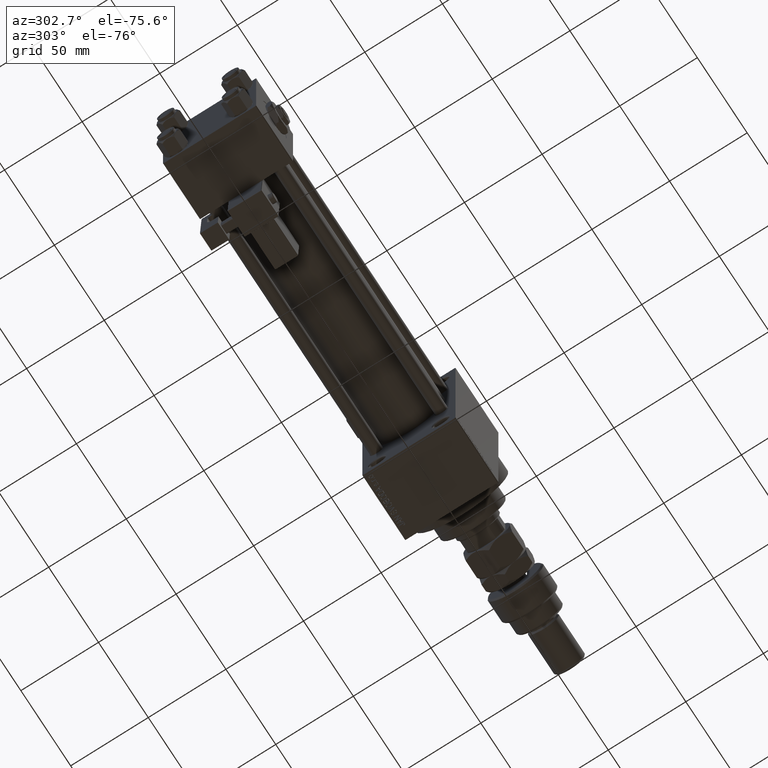
[diagram: clean part render]
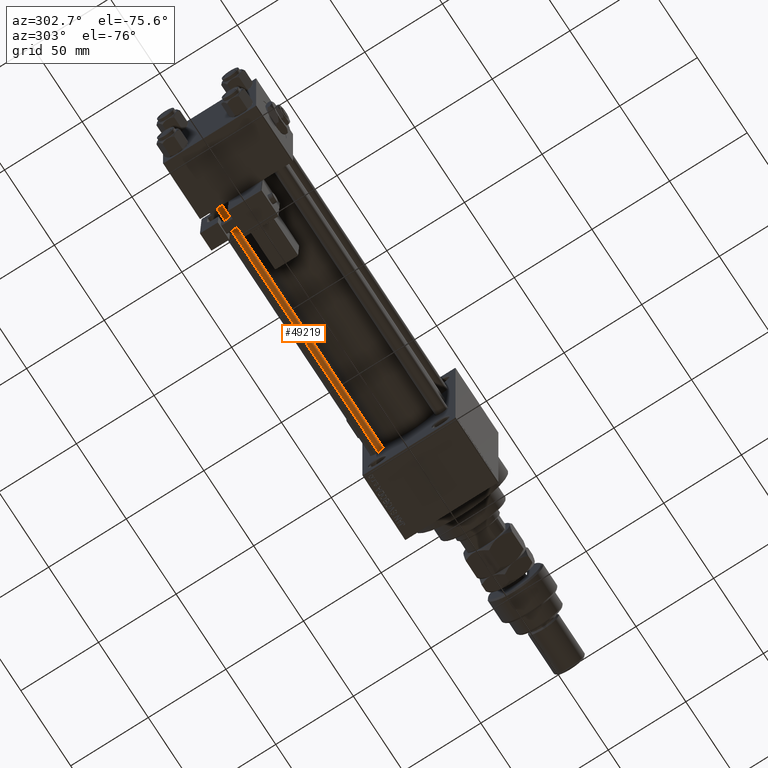
[diagram: same view with one face highlighted and labeled with its STEP entity id]
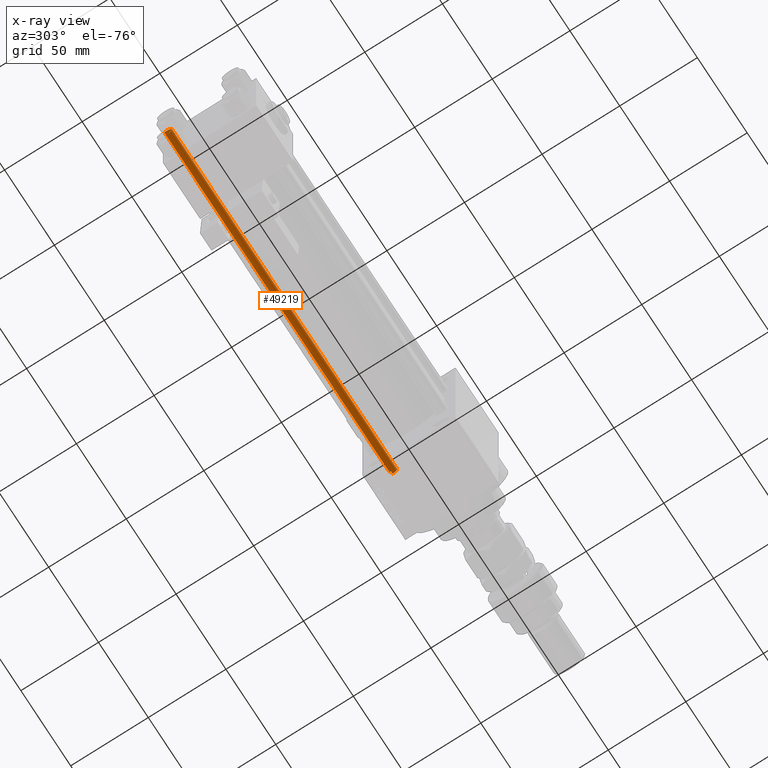
[diagram: x-ray of the same camera — body ghosted, the highlighted face saturated]
A machine part, auxiliary view. The second image highlights one B-rep face of the part: STEP entity #49219.
The next image is the same camera in x-ray: the body ghosted, the highlighted face saturated — about 0% of this face is hidden behind the body in this view.
In plain terms, the highlighted cylindrical surface (edge-blend (fillet) strip) has radius 4 mm, axis along (1, -0, 0).
Its self-contained STEP definition (entity closure, byte-faithful):
#99 = LINE ( 'NONE', #37821, #11263 ) ;
#1567 = CARTESIAN_POINT ( 'NONE',  ( 4.000000000000000000, 4.898587196589411843E-16, 226.5000000000001421 ) ) ;
#1612 = DIRECTION ( 'NONE',  ( -0.000000000000000000, -0.000000000000000000, 1.000000000000000000 ) ) ;
#1792 = VERTEX_POINT ( 'NONE', #1567 ) ;
#2435 = CARTESIAN_POINT ( 'NONE',  ( 0.000000000000000000, 0.000000000000000000, 226.5000000000001421 ) ) ;
#7819 = CARTESIAN_POINT ( 'NONE',  ( -4.000000000000000000, 0.000000000000000000, 0.5000000000002224887 ) ) ;
#8431 = EDGE_CURVE ( 'NONE', #1792, #43873, #36110, .T. ) ;
#9827 = ORIENTED_EDGE ( 'NONE', *, *, #47148, .T. ) ;
#11263 = VECTOR ( 'NONE', #53664, 1000.000000000000000 ) ;
#12235 = CARTESIAN_POINT ( 'NONE',  ( 0.000000000000000000, 0.000000000000000000, 227.0000000000000000 ) ) ;
#13916 = CARTESIAN_POINT ( 'NONE',  ( 4.000000000000000000, 4.898587196589411843E-16, 0.5000000000002224887 ) ) ;
#14193 = CARTESIAN_POINT ( 'NONE',  ( 0.000000000000000000, 0.000000000000000000, 0.5000000000002224887 ) ) ;
#15277 = DIRECTION ( 'NONE',  ( 1.000000000000000000, 0.000000000000000000, 0.000000000000000000 ) ) ;
#15329 = CARTESIAN_POINT ( 'NONE',  ( 4.000000000000000000, 4.898587196589411843E-16, 227.0000000000000000 ) ) ;
#15676 = EDGE_LOOP ( 'NONE', ( #27337, #17194, #9827, #53007 ) ) ;
#16608 = FACE_OUTER_BOUND ( 'NONE', #15676, .T. ) ;
#16668 = AXIS2_PLACEMENT_3D ( 'NONE', #2435, #32245, #15277 ) ;
#17194 = ORIENTED_EDGE ( 'NONE', *, *, #52738, .T. ) ;
#24563 = CYLINDRICAL_SURFACE ( 'NONE', #37452, 4.000000000000000000 ) ;
#24565 = CIRCLE ( 'NONE', #16668, 4.000000000000000000 ) ;
#27337 = ORIENTED_EDGE ( 'NONE', *, *, #8431, .F. ) ;
#28367 = VERTEX_POINT ( 'NONE', #7819 ) ;
#28722 = AXIS2_PLACEMENT_3D ( 'NONE', #14193, #1612, #51903 ) ;
#32245 = DIRECTION ( 'NONE',  ( 0.000000000000000000, 0.000000000000000000, -1.000000000000000000 ) ) ;
#33314 = CARTESIAN_POINT ( 'NONE',  ( -4.000000000000000000, 0.000000000000000000, 226.5000000000001421 ) ) ;
#36110 = LINE ( 'NONE', #15329, #36580 ) ;
#36580 = VECTOR ( 'NONE', #48682, 1000.000000000000000 ) ;
#37452 = AXIS2_PLACEMENT_3D ( 'NONE', #12235, #41226, #49940 ) ;
#37821 = CARTESIAN_POINT ( 'NONE',  ( -4.000000000000000000, 0.000000000000000000, 227.0000000000000000 ) ) ;
#39181 = CIRCLE ( 'NONE', #28722, 4.000000000000000000 ) ;
#40229 = VERTEX_POINT ( 'NONE', #33314 ) ;
#41226 = DIRECTION ( 'NONE',  ( -0.000000000000000000, -0.000000000000000000, -1.000000000000000000 ) ) ;
#43873 = VERTEX_POINT ( 'NONE', #13916 ) ;
#45529 = EDGE_CURVE ( 'NONE', #28367, #43873, #39181, .T. ) ;
#47148 = EDGE_CURVE ( 'NONE', #40229, #28367, #99, .T. ) ;
#48682 = DIRECTION ( 'NONE',  ( -0.000000000000000000, -0.000000000000000000, -1.000000000000000000 ) ) ;
#49219 = ADVANCED_FACE ( 'NONE', ( #16608 ), #24563, .T. ) ;
#49940 = DIRECTION ( 'NONE',  ( -1.000000000000000000, 0.000000000000000000, 0.000000000000000000 ) ) ;
#51903 = DIRECTION ( 'NONE',  ( 1.000000000000000000, 0.000000000000000000, 0.000000000000000000 ) ) ;
#52738 = EDGE_CURVE ( 'NONE', #1792, #40229, #24565, .T. ) ;
#53007 = ORIENTED_EDGE ( 'NONE', *, *, #45529, .T. ) ;
#53664 = DIRECTION ( 'NONE',  ( -0.000000000000000000, -0.000000000000000000, -1.000000000000000000 ) ) ;